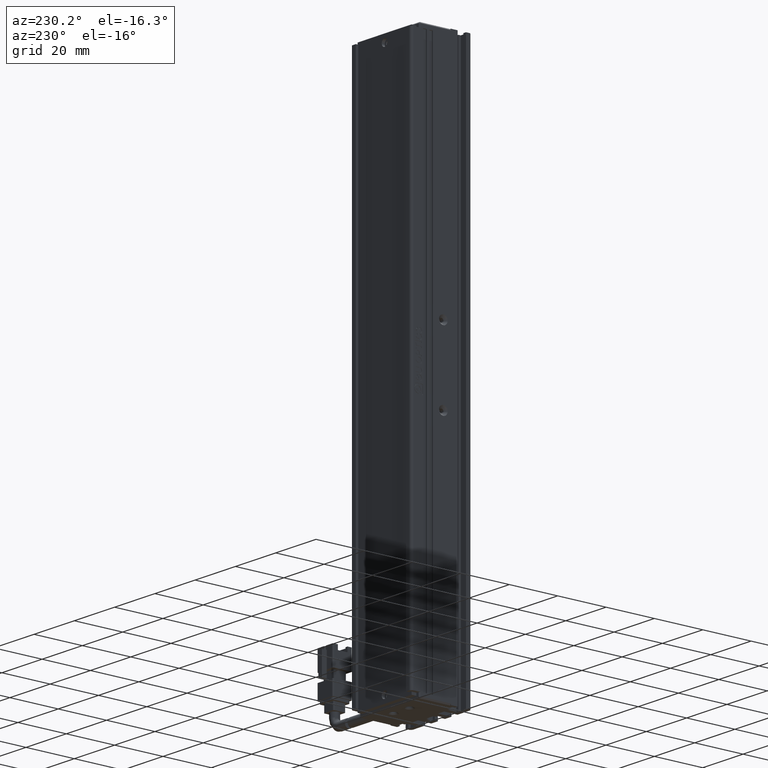
[diagram: clean part render]
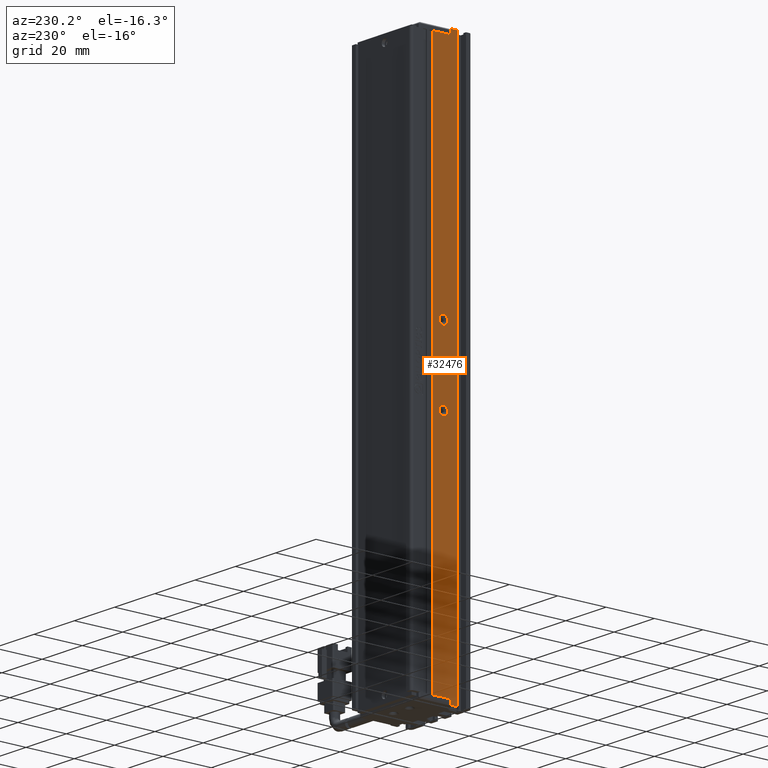
[diagram: same view with one face highlighted and labeled with its STEP entity id]
A machine part, auxiliary view. The second image highlights one B-rep face of the part: STEP entity #32476.
In plain terms, the highlighted planar face has unit normal (-1, 0, 0).
Its self-contained STEP definition (entity closure, byte-faithful):
#17 = EDGE_CURVE ( 'NONE', #12828, #39644, #29545, .T. ) ;
#292 = EDGE_CURVE ( 'NONE', #9211, #28423, #3206, .T. ) ;
#804 = CARTESIAN_POINT ( 'NONE',  ( 25.92537974684906700, 22.39594479660386700, -98.20000000001073200 ) ) ;
#1071 = CARTESIAN_POINT ( 'NONE',  ( 25.92537974683541800, 26.69594479660386800, -225.0000000000000000 ) ) ;
#1172 = ORIENTED_EDGE ( 'NONE', *, *, #20328, .T. ) ;
#1783 = EDGE_LOOP ( 'NONE', ( #18289, #12356 ) ) ;
#1799 = CARTESIAN_POINT ( 'NONE',  ( 25.92537974683541800, 19.19594479660386500, -5.000000000000004400 ) ) ;
#2371 = EDGE_CURVE ( 'NONE', #31756, #15708, #37415, .T. ) ;
#3206 = LINE ( 'NONE', #17906, #23580 ) ;
#3753 = DIRECTION ( 'NONE',  ( -1.000000000000000000, 0.0000000000000000000, 0.0000000000000000000 ) ) ;
#3962 = DIRECTION ( 'NONE',  ( 0.0000000000000000000, 1.000000000000000000, 0.0000000000000000000 ) ) ;
#4172 = VECTOR ( 'NONE', #6165, 1000.000000000000000 ) ;
#5921 = DIRECTION ( 'NONE',  ( -0.0000000000000000000, -0.0000000000000000000, -1.000000000000000000 ) ) ;
#6049 = CARTESIAN_POINT ( 'NONE',  ( 25.92537974683541800, 26.69594479660386800, -3.000000000000002700 ) ) ;
#6165 = DIRECTION ( 'NONE',  ( 0.0000000000000000000, -0.0000000000000000000, -1.000000000000000000 ) ) ;
#6585 = EDGE_LOOP ( 'NONE', ( #48652, #1172, #48087, #42464, #48118, #10051, #37037, #38734 ) ) ;
#7178 = DIRECTION ( 'NONE',  ( 0.0000000000000000000, -0.0000000000000000000, -1.000000000000000000 ) ) ;
#9055 = LINE ( 'NONE', #26887, #38246 ) ;
#9064 = EDGE_CURVE ( 'NONE', #45976, #9211, #25288, .T. ) ;
#9211 = VERTEX_POINT ( 'NONE', #1071 ) ;
#9869 = CARTESIAN_POINT ( 'NONE',  ( 25.92537974683541800, 19.19594479660386500, -3.000000000000002700 ) ) ;
#10051 = ORIENTED_EDGE ( 'NONE', *, *, #37357, .T. ) ;
#10416 = CARTESIAN_POINT ( 'NONE',  ( 25.92537974683541800, 16.49594479660387200, -3.000000000000002700 ) ) ;
#10962 = CARTESIAN_POINT ( 'NONE',  ( 25.92537974683541800, 19.19594479660386500, -227.0000000000000000 ) ) ;
#12356 = ORIENTED_EDGE ( 'NONE', *, *, #17615, .T. ) ;
#12674 = VERTEX_POINT ( 'NONE', #23433 ) ;
#12828 = VERTEX_POINT ( 'NONE', #36390 ) ;
#13298 = CIRCLE ( 'NONE', #44074, 1.800000000073409500 ) ;
#13695 = ORIENTED_EDGE ( 'NONE', *, *, #17, .T. ) ;
#13720 = CARTESIAN_POINT ( 'NONE',  ( 25.92537974684906700, 22.39594479660386700, -100.0000000000000000 ) ) ;
#14027 = CARTESIAN_POINT ( 'NONE',  ( 25.92537974679222400, 22.39594479660386700, -130.0000000000000000 ) ) ;
#15245 = AXIS2_PLACEMENT_3D ( 'NONE', #37926, #37178, #37279 ) ;
#15587 = LINE ( 'NONE', #9869, #4172 ) ;
#15708 = VERTEX_POINT ( 'NONE', #37359 ) ;
#15846 = VECTOR ( 'NONE', #7178, 1000.000000000000000 ) ;
#17575 = DIRECTION ( 'NONE',  ( 0.0000000000000000000, 0.0000000000000000000, 1.000000000000000000 ) ) ;
#17615 = EDGE_CURVE ( 'NONE', #43219, #20660, #42256, .T. ) ;
#17873 = DIRECTION ( 'NONE',  ( 0.0000000000000000000, 0.0000000000000000000, 1.000000000000000000 ) ) ;
#17906 = CARTESIAN_POINT ( 'NONE',  ( 25.92537974683541800, 7.083797468354437600, -225.0000000000000000 ) ) ;
#18163 = DIRECTION ( 'NONE',  ( 0.0000000000000000000, 1.000000000000000000, -0.0000000000000000000 ) ) ;
#18289 = ORIENTED_EDGE ( 'NONE', *, *, #43450, .T. ) ;
#18410 = VECTOR ( 'NONE', #22181, 1000.000000000000000 ) ;
#18500 = CARTESIAN_POINT ( 'NONE',  ( 25.92537974683541800, 19.19594479660386500, -225.0000000000000000 ) ) ;
#18736 = FACE_BOUND ( 'NONE', #41167, .T. ) ;
#18826 = AXIS2_PLACEMENT_3D ( 'NONE', #13720, #40355, #17575 ) ;
#19683 = CARTESIAN_POINT ( 'NONE',  ( 25.92537974684906700, 22.39594479660386700, -101.7999999999892700 ) ) ;
#19953 = FACE_BOUND ( 'NONE', #1783, .T. ) ;
#20328 = EDGE_CURVE ( 'NONE', #12674, #41484, #15587, .T. ) ;
#20660 = VERTEX_POINT ( 'NONE', #804 ) ;
#21157 = DIRECTION ( 'NONE',  ( 1.000000000000000000, -0.0000000000000000000, -0.0000000000000000000 ) ) ;
#22181 = DIRECTION ( 'NONE',  ( -0.0000000000000000000, -1.000000000000000000, 0.0000000000000000000 ) ) ;
#22814 = VERTEX_POINT ( 'NONE', #28623 ) ;
#23381 = LINE ( 'NONE', #40915, #43559 ) ;
#23433 = CARTESIAN_POINT ( 'NONE',  ( 25.92537974683541800, 19.19594479660386500, -3.000000000000002700 ) ) ;
#23580 = VECTOR ( 'NONE', #42752, 1000.000000000000000 ) ;
#23638 = EDGE_CURVE ( 'NONE', #41484, #45976, #9055, .T. ) ;
#24910 = AXIS2_PLACEMENT_3D ( 'NONE', #43890, #21157, #47711 ) ;
#25288 = LINE ( 'NONE', #6049, #45482 ) ;
#25405 = CARTESIAN_POINT ( 'NONE',  ( 25.92537974683541800, 7.083797468354437600, -227.0000000000000000 ) ) ;
#26126 = AXIS2_PLACEMENT_3D ( 'NONE', #26679, #3753, #30509 ) ;
#26512 = PLANE ( 'NONE',  #26126 ) ;
#26679 = CARTESIAN_POINT ( 'NONE',  ( 25.92537974683541800, 7.083797468354437600, -3.000000000000002700 ) ) ;
#26864 = VECTOR ( 'NONE', #44662, 1000.000000000000000 ) ;
#26887 = CARTESIAN_POINT ( 'NONE',  ( 25.92537974683542100, 35.69594479660387500, -5.000000000000004400 ) ) ;
#28423 = VERTEX_POINT ( 'NONE', #18500 ) ;
#28623 = CARTESIAN_POINT ( 'NONE',  ( 25.92537974683541800, 16.49594479660387200, -3.000000000000002700 ) ) ;
#29545 = CIRCLE ( 'NONE', #15245, 1.800000000073409500 ) ;
#29902 = CARTESIAN_POINT ( 'NONE',  ( 25.92537974683542100, 19.19594479660386500, -3.000000000000002700 ) ) ;
#30509 = DIRECTION ( 'NONE',  ( 0.0000000000000000000, 0.0000000000000000000, 1.000000000000000000 ) ) ;
#30632 = EDGE_CURVE ( 'NONE', #15708, #22814, #36934, .T. ) ;
#31756 = VERTEX_POINT ( 'NONE', #10962 ) ;
#32476 = ADVANCED_FACE ( 'NONE', ( #38952, #19953, #18736 ), #26512, .T. ) ;
#34140 = CARTESIAN_POINT ( 'NONE',  ( 25.92537974679222400, 22.39594479660386700, -131.8000000000734200 ) ) ;
#35040 = CIRCLE ( 'NONE', #24910, 1.799999999989268400 ) ;
#36085 = LINE ( 'NONE', #29902, #15846 ) ;
#36390 = CARTESIAN_POINT ( 'NONE',  ( 25.92537974679222400, 22.39594479660386700, -128.1999999999266000 ) ) ;
#36934 = LINE ( 'NONE', #10416, #26864 ) ;
#37037 = ORIENTED_EDGE ( 'NONE', *, *, #2371, .T. ) ;
#37178 = DIRECTION ( 'NONE',  ( 1.000000000000000000, -0.0000000000000000000, -0.0000000000000000000 ) ) ;
#37229 = ORIENTED_EDGE ( 'NONE', *, *, #45595, .T. ) ;
#37279 = DIRECTION ( 'NONE',  ( 0.0000000000000000000, 0.0000000000000000000, 1.000000000000000000 ) ) ;
#37357 = EDGE_CURVE ( 'NONE', #28423, #31756, #36085, .T. ) ;
#37359 = CARTESIAN_POINT ( 'NONE',  ( 25.92537974683541800, 16.49594479660387200, -227.0000000000000000 ) ) ;
#37415 = LINE ( 'NONE', #25405, #18410 ) ;
#37926 = CARTESIAN_POINT ( 'NONE',  ( 25.92537974679222400, 22.39594479660386700, -130.0000000000000000 ) ) ;
#38246 = VECTOR ( 'NONE', #3962, 1000.000000000000000 ) ;
#38734 = ORIENTED_EDGE ( 'NONE', *, *, #30632, .T. ) ;
#38952 = FACE_OUTER_BOUND ( 'NONE', #6585, .T. ) ;
#39459 = CARTESIAN_POINT ( 'NONE',  ( 25.92537974683541800, 26.69594479660386800, -5.000000000000004400 ) ) ;
#39644 = VERTEX_POINT ( 'NONE', #34140 ) ;
#40355 = DIRECTION ( 'NONE',  ( 1.000000000000000000, -0.0000000000000000000, -0.0000000000000000000 ) ) ;
#40655 = DIRECTION ( 'NONE',  ( 1.000000000000000000, -0.0000000000000000000, -0.0000000000000000000 ) ) ;
#40915 = CARTESIAN_POINT ( 'NONE',  ( 25.92537974683541800, 7.083797468354437600, -3.000000000000002700 ) ) ;
#41167 = EDGE_LOOP ( 'NONE', ( #13695, #37229 ) ) ;
#41484 = VERTEX_POINT ( 'NONE', #1799 ) ;
#42256 = CIRCLE ( 'NONE', #18826, 1.799999999989268400 ) ;
#42464 = ORIENTED_EDGE ( 'NONE', *, *, #9064, .T. ) ;
#42752 = DIRECTION ( 'NONE',  ( -0.0000000000000000000, -1.000000000000000000, 0.0000000000000000000 ) ) ;
#43219 = VERTEX_POINT ( 'NONE', #19683 ) ;
#43450 = EDGE_CURVE ( 'NONE', #20660, #43219, #35040, .T. ) ;
#43559 = VECTOR ( 'NONE', #18163, 1000.000000000000000 ) ;
#43890 = CARTESIAN_POINT ( 'NONE',  ( 25.92537974684906700, 22.39594479660386700, -100.0000000000000000 ) ) ;
#44074 = AXIS2_PLACEMENT_3D ( 'NONE', #14027, #40655, #17873 ) ;
#44662 = DIRECTION ( 'NONE',  ( 0.0000000000000000000, 0.0000000000000000000, 1.000000000000000000 ) ) ;
#45482 = VECTOR ( 'NONE', #5921, 1000.000000000000000 ) ;
#45595 = EDGE_CURVE ( 'NONE', #39644, #12828, #13298, .T. ) ;
#45976 = VERTEX_POINT ( 'NONE', #39459 ) ;
#46139 = EDGE_CURVE ( 'NONE', #22814, #12674, #23381, .T. ) ;
#47711 = DIRECTION ( 'NONE',  ( 0.0000000000000000000, 0.0000000000000000000, 1.000000000000000000 ) ) ;
#48087 = ORIENTED_EDGE ( 'NONE', *, *, #23638, .T. ) ;
#48118 = ORIENTED_EDGE ( 'NONE', *, *, #292, .T. ) ;
#48652 = ORIENTED_EDGE ( 'NONE', *, *, #46139, .T. ) ;